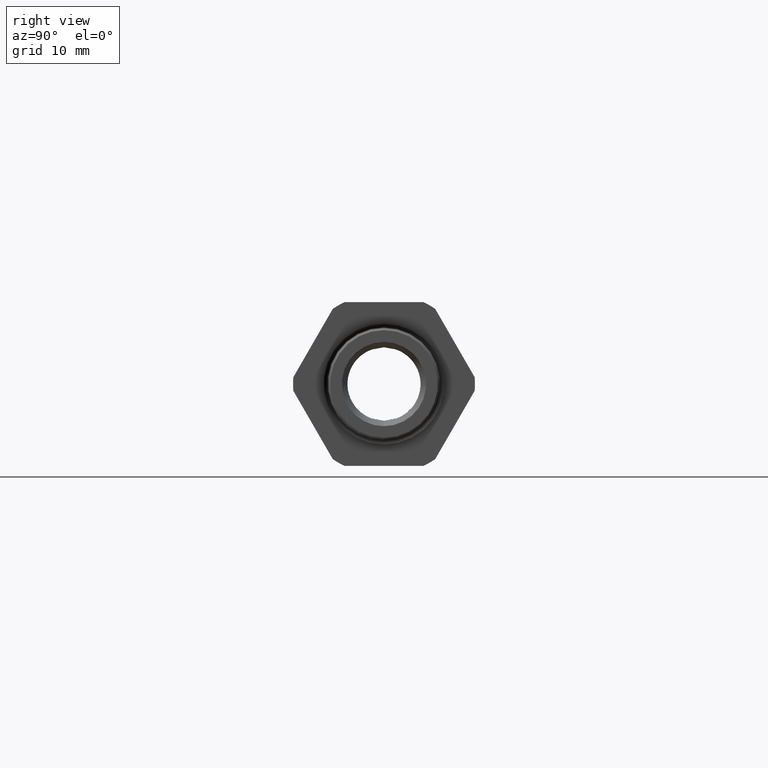
[diagram: clean part render]
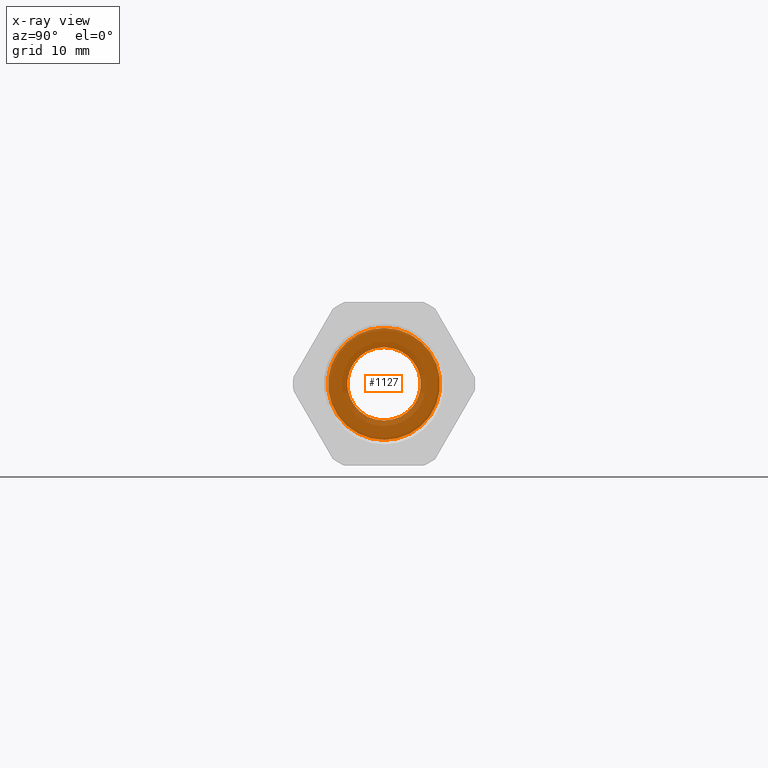
[diagram: x-ray — body ghosted, one internal face saturated and labeled with its STEP entity id]
A machine part, right view, then the same camera in x-ray: the body is ghosted and one INTERNAL B-rep face — a face not visible from any outside direction — is saturated and labeled: STEP entity #1127.
In plain terms, the highlighted planar face has unit normal (-1, 0, 0).
Its self-contained STEP definition (entity closure, byte-faithful):
#967 = ORIENTED_EDGE ( 'NONE', *, *, #1124, .F. ) ;
#968 = ORIENTED_EDGE ( 'NONE', *, *, #1178, .F. ) ;
#1077 = VERTEX_POINT ( 'NONE', #13288 ) ;
#1108 = EDGE_CURVE ( 'NONE', #1077, #1109, #13360, .T. ) ;
#1109 = VERTEX_POINT ( 'NONE', #13356 ) ;
#1124 = EDGE_CURVE ( 'NONE', #1180, #1179, #13393, .T. ) ;
#1127 = ADVANCED_FACE ( 'NONE', ( #13388, #13387 ), #13386, .T. ) ;
#1128 = EDGE_LOOP ( 'NONE', ( #1129, #1131 ) ) ;
#1129 = ORIENTED_EDGE ( 'NONE', *, *, #1130, .T. ) ;
#1130 = EDGE_CURVE ( 'NONE', #1109, #1077, #13381, .T. ) ;
#1131 = ORIENTED_EDGE ( 'NONE', *, *, #1108, .T. ) ;
#1132 = EDGE_LOOP ( 'NONE', ( #968, #967 ) ) ;
#1178 = EDGE_CURVE ( 'NONE', #1179, #1180, #13471, .T. ) ;
#1179 = VERTEX_POINT ( 'NONE', #13466 ) ;
#1180 = VERTEX_POINT ( 'NONE', #13465 ) ;
#13288 = CARTESIAN_POINT ( 'NONE',  ( -1.269999999999999400, 2.388061258337338700E-017, 0.1950000000000000100 ) ) ;
#13301 = CARTESIAN_POINT ( 'NONE',  ( -1.269999999999999400, 0.0000000000000000000, 0.0000000000000000000 ) ) ;
#13356 = CARTESIAN_POINT ( 'NONE',  ( -1.269999999999999400, 0.0000000000000000000, -0.1950000000000000100 ) ) ;
#13357 = DIRECTION ( 'NONE',  ( 0.0000000000000000000, 0.0000000000000000000, -1.000000000000000000 ) ) ;
#13358 = DIRECTION ( 'NONE',  ( 1.000000000000000000, 0.0000000000000000000, 0.0000000000000000000 ) ) ;
#13359 = AXIS2_PLACEMENT_3D ( 'NONE', #13301, #13358, #13357 ) ;
#13360 = CIRCLE ( 'NONE', #13359, 0.1950000000000000100 ) ;
#13377 = DIRECTION ( 'NONE',  ( 0.0000000000000000000, 0.0000000000000000000, -1.000000000000000000 ) ) ;
#13378 = DIRECTION ( 'NONE',  ( 1.000000000000000000, 0.0000000000000000000, 0.0000000000000000000 ) ) ;
#13379 = CARTESIAN_POINT ( 'NONE',  ( -1.269999999999999400, 0.0000000000000000000, 0.0000000000000000000 ) ) ;
#13380 = AXIS2_PLACEMENT_3D ( 'NONE', #13379, #13378, #13377 ) ;
#13381 = CIRCLE ( 'NONE', #13380, 0.1950000000000000100 ) ;
#13382 = DIRECTION ( 'NONE',  ( 0.0000000000000000000, 0.0000000000000000000, 1.000000000000000000 ) ) ;
#13383 = DIRECTION ( 'NONE',  ( -1.000000000000000000, 0.0000000000000000000, 0.0000000000000000000 ) ) ;
#13384 = CARTESIAN_POINT ( 'NONE',  ( -1.269999999999999600, 0.1950000000000000100, 0.0000000000000000000 ) ) ;
#13385 = AXIS2_PLACEMENT_3D ( 'NONE', #13384, #13383, #13382 ) ;
#13386 = PLANE ( 'NONE',  #13385 ) ;
#13387 = FACE_OUTER_BOUND ( 'NONE', #1132, .T. ) ;
#13388 = FACE_BOUND ( 'NONE', #1128, .T. ) ;
#13389 = DIRECTION ( 'NONE',  ( 0.0000000000000000000, 0.0000000000000000000, -1.000000000000000000 ) ) ;
#13390 = DIRECTION ( 'NONE',  ( 1.000000000000000000, 0.0000000000000000000, 0.0000000000000000000 ) ) ;
#13391 = CARTESIAN_POINT ( 'NONE',  ( -1.269999999999999400, 0.0000000000000000000, 0.0000000000000000000 ) ) ;
#13392 = AXIS2_PLACEMENT_3D ( 'NONE', #13391, #13390, #13389 ) ;
#13393 = CIRCLE ( 'NONE', #13392, 0.2975500000000000400 ) ;
#13465 = CARTESIAN_POINT ( 'NONE',  ( -1.269999999999999400, 3.766401230777684900E-017, 0.2975500000000000400 ) ) ;
#13466 = CARTESIAN_POINT ( 'NONE',  ( -1.269999999999999400, 0.0000000000000000000, -0.2975500000000000400 ) ) ;
#13467 = DIRECTION ( 'NONE',  ( 0.0000000000000000000, 0.0000000000000000000, -1.000000000000000000 ) ) ;
#13468 = DIRECTION ( 'NONE',  ( 1.000000000000000000, 0.0000000000000000000, 0.0000000000000000000 ) ) ;
#13469 = CARTESIAN_POINT ( 'NONE',  ( -1.269999999999999400, 0.0000000000000000000, 0.0000000000000000000 ) ) ;
#13470 = AXIS2_PLACEMENT_3D ( 'NONE', #13469, #13468, #13467 ) ;
#13471 = CIRCLE ( 'NONE', #13470, 0.2975500000000000400 ) ;